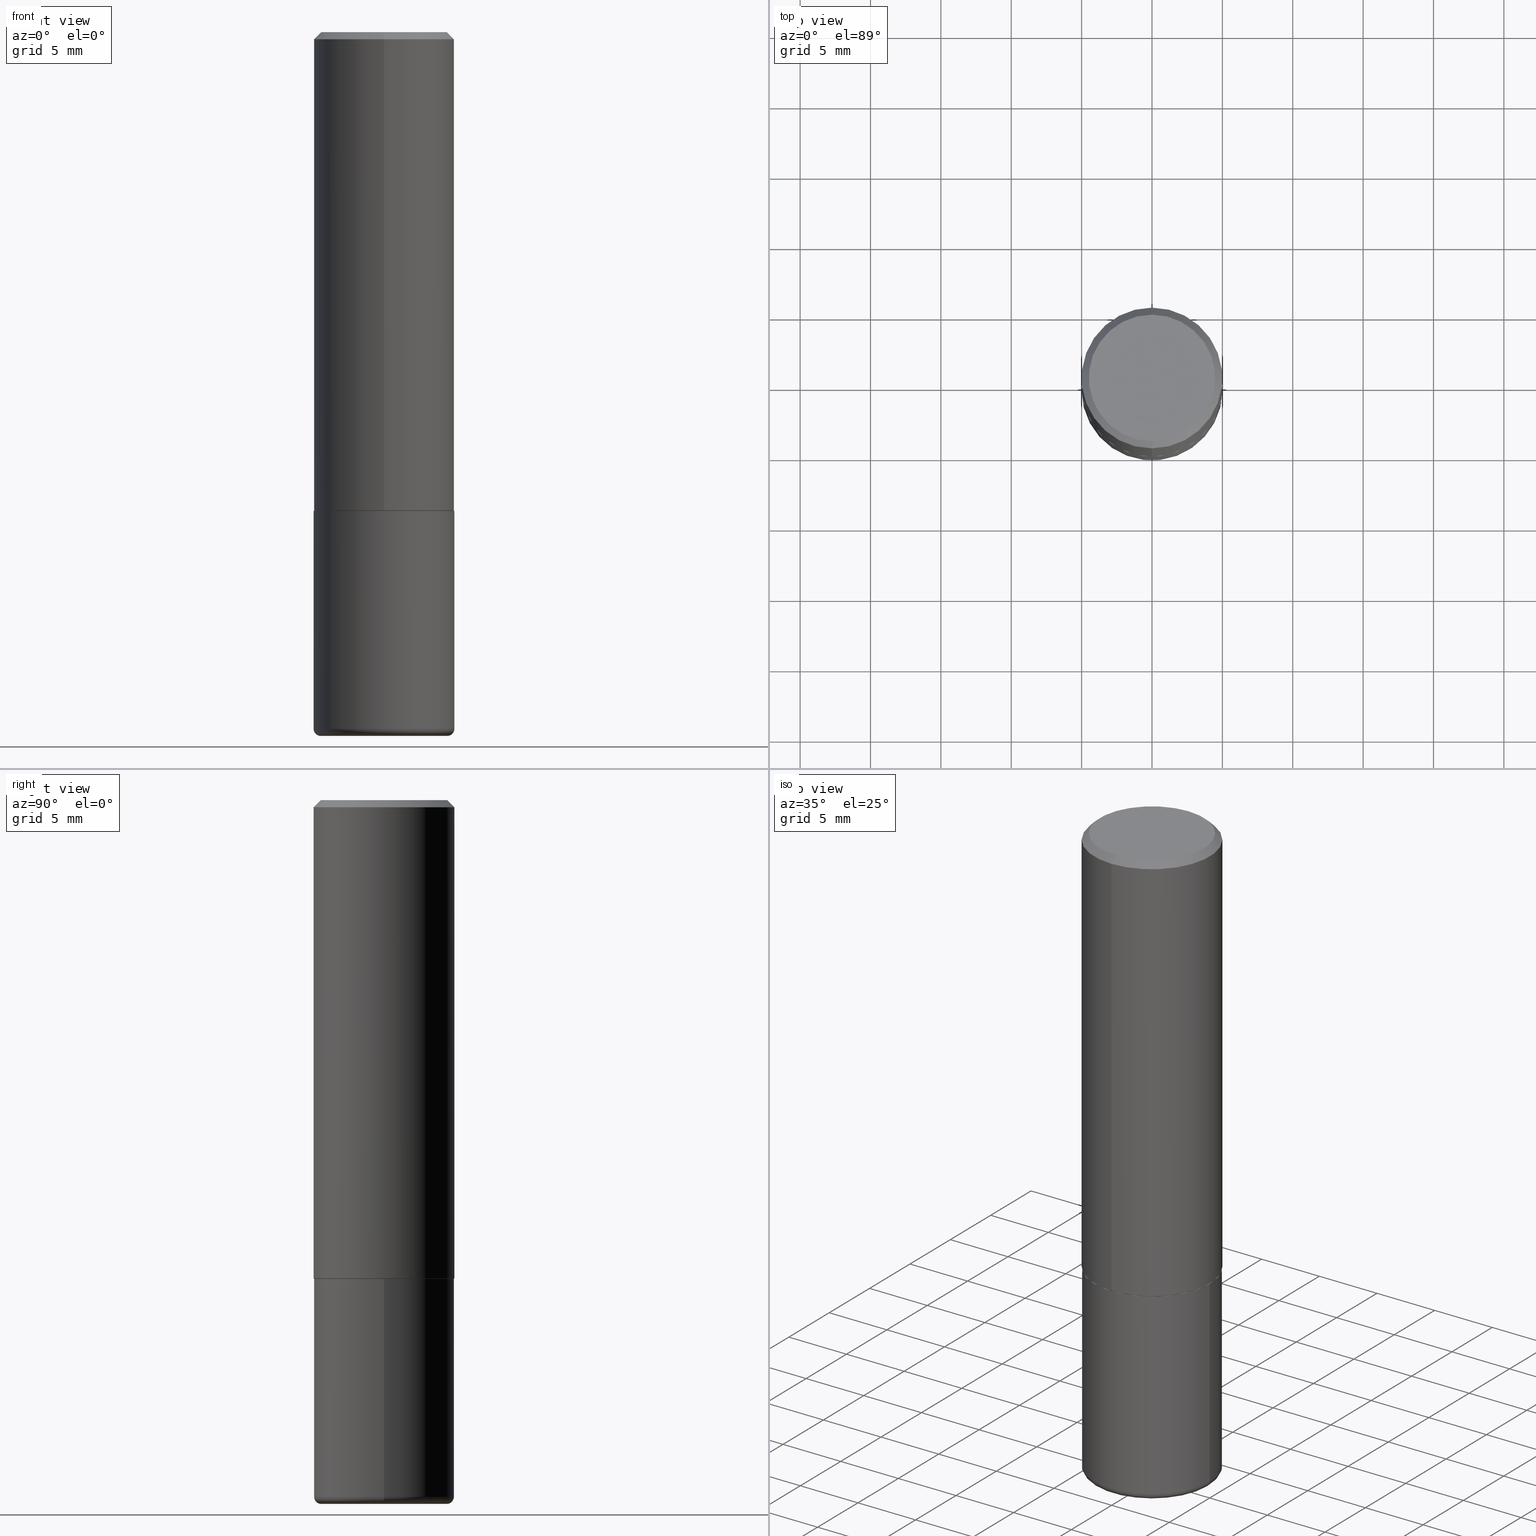
[diagram: canonical four-view strip — front | top / right | iso, engineering-drawing reading convention]
A machine part, canonical four-view strip (front | top / right | iso — engineering-drawing reading convention). The complete STEP part file that produces these views, byte-faithful:
ISO-10303-21;
HEADER;
FILE_DESCRIPTION (( 'STEP AP203' ),
    '1' );
FILE_NAME ('42672.STEP',
    '2024-03-04T00:34:59',
    ( '' ),
    ( '' ),
    'SwSTEP 2.0',
    'SolidWorks 2023',
    '' );
FILE_SCHEMA (( 'CONFIG_CONTROL_DESIGN' ));
ENDSEC;

DATA;
#1 = EDGE_LOOP ( 'NONE', ( #102, #203, #369, #12 ) ) ;
#2 = EDGE_CURVE ( 'NONE', #41, #218, #229, .T. ) ;
#3 = EDGE_CURVE ( 'NONE', #199, #367, #324, .T. ) ;
#4 = AXIS2_PLACEMENT_3D ( 'NONE', #159, #100, #301 ) ;
#5 = AXIS2_PLACEMENT_3D ( 'NONE', #157, #256, #262 ) ;
#6 = DIRECTION ( 'NONE',  ( -2.445468806185136597E-29, 3.491481338843145583E-15, 1.000000000000000000 ) ) ;
#7 = DATE_AND_TIME ( #64, #364 ) ;
#8 = FACE_OUTER_BOUND ( 'NONE', #80, .T. ) ;
#9 = AXIS2_PLACEMENT_3D ( 'NONE', #133, #365, #13 ) ;
#10 = CC_DESIGN_PERSON_AND_ORGANIZATION_ASSIGNMENT ( #179, #60, ( #182 ) ) ;
#11 = DIRECTION ( 'NONE',  ( 6.982962677686265133E-15, 1.000000000000000000, -3.491137977679279029E-15 ) ) ;
#12 = ORIENTED_EDGE ( 'NONE', *, *, #190, .F. ) ;
#13 = DIRECTION ( 'NONE',  ( -1.000000000000000000, 7.105427357601014480E-15, 0.000000000000000000 ) ) ;
#14 = DIRECTION ( 'NONE',  ( 1.000000000000000000, -6.982962677686266711E-15, 0.000000000000000000 ) ) ;
#15 = ORIENTED_EDGE ( 'NONE', *, *, #104, .F. ) ;
#16 = DIRECTION ( 'NONE',  ( 1.000000000000000000, -6.982962677686268288E-15, 0.000000000000000000 ) ) ;
#17 = CARTESIAN_POINT ( 'NONE',  ( -1.367613240424822659E-15, -0.1958500000000047148, -1.338599999999999568 ) ) ;
#18 = VERTEX_POINT ( 'NONE', #142 ) ;
#19 = VECTOR ( 'NONE', #331, 39.37007874015748143 ) ;
#20 = CARTESIAN_POINT ( 'NONE',  ( 4.765729609493594537E-29, -6.804198833137522100E-15, -1.948800000000000088 ) ) ;
#21 = CARTESIAN_POINT ( 'NONE',  ( 0.000000000000000000, 0.000000000000000000, 0.000000000000000000 ) ) ;
#22 = ORIENTED_EDGE ( 'NONE', *, *, #289, .F. ) ;
#23 = CIRCLE ( 'NONE', #241, 0.1768499999999998129 ) ;
#24 = LOCAL_TIME ( 19, 34, 59.00000000000000000, #318 ) ;
#25 = FACE_OUTER_BOUND ( 'NONE', #69, .T. ) ;
#26 = COORDINATED_UNIVERSAL_TIME_OFFSET ( 5, 0, .BEHIND. ) ;
#27 = PLANE ( 'NONE',  #418 ) ;
#28 = ORIENTED_EDGE ( 'NONE', *, *, #3, .T. ) ;
#29 = DATE_TIME_ROLE ( 'creation_date' ) ;
#30 = DIRECTION ( 'NONE',  ( -2.445468806185136597E-29, 3.491481338843145583E-15, 1.000000000000000000 ) ) ;
#31 = EDGE_CURVE ( 'NONE', #342, #98, #392, .T. ) ;
#32 = CIRCLE ( 'NONE', #81, 0.1771499999999999742 ) ;
#33 = ORGANIZATION ( 'UNSPECIFIED', 'UNSPECIFIED', '' ) ;
#34 = PERSON ( 'UNSPECIFIED', 'UNSPECIFIED', 'UNSPECIFIED', ('UNSPECIFIED'), ('UNSPECIFIED'), ('UNSPECIFIED') ) ;
#35 = EDGE_CURVE ( 'NONE', #218, #98, #285, .T. ) ;
#36 = CC_DESIGN_PERSON_AND_ORGANIZATION_ASSIGNMENT ( #85, #95, ( #182 ) ) ;
#37 = CIRCLE ( 'NONE', #384, 0.1968500000000000527 ) ;
#38 = CARTESIAN_POINT ( 'NONE',  ( 4.765729609493594537E-29, -6.804198833137522100E-15, -1.948800000000000088 ) ) ;
#39 = DIRECTION ( 'NONE',  ( -2.445468806185136597E-29, 3.491481338843145583E-15, 1.000000000000000000 ) ) ;
#40 = EDGE_CURVE ( 'NONE', #208, #401, #200, .T. ) ;
#41 = VERTEX_POINT ( 'NONE', #17 ) ;
#42 = FACE_OUTER_BOUND ( 'NONE', #325, .T. ) ;
#43 = VECTOR ( 'NONE', #209, 39.37007874015748143 ) ;
#44 = ORIENTED_EDGE ( 'NONE', *, *, #112, .F. ) ;
#45 = DIRECTION ( 'NONE',  ( 1.000000000000000000, -6.982962677686266711E-15, 4.876176775795935793E-29 ) ) ;
#46 = LINE ( 'NONE', #140, #153 ) ;
#47 = DIRECTION ( 'NONE',  ( -6.982962677686265922E-15, -1.000000000000000000, 3.489961076653892857E-15 ) ) ;
#48 = ORIENTED_EDGE ( 'NONE', *, *, #35, .T. ) ;
#49 = EDGE_CURVE ( 'NONE', #98, #218, #65, .T. ) ;
#50 = CLOSED_SHELL ( 'NONE', ( #148, #299, #169, #227, #265, #154, #379, #243 ) ) ;
#51 = AXIS2_PLACEMENT_3D ( 'NONE', #207, #162, #47 ) ;
#52 = CARTESIAN_POINT ( 'NONE',  ( 4.893060799195852986E-31, -6.979922153307800258E-17, -0.02000000000000004205 ) ) ;
#53 = EDGE_CURVE ( 'NONE', #156, #298, #73, .T. ) ;
#54 =( LENGTH_UNIT ( ) NAMED_UNIT ( * ) SI_UNIT ( $, .METRE. ) );
#55 = FACE_OUTER_BOUND ( 'NONE', #126, .T. ) ;
#56 = CONICAL_SURFACE ( 'NONE', #99, 0.1958500000000000518, 0.7853981633973288190 ) ;
#57 = AXIS2_PLACEMENT_3D ( 'NONE', #139, #291, #110 ) ;
#58 = DIRECTION ( 'NONE',  ( 2.446530399597921291E-29, -3.489961076653893251E-15, -1.000000000000000000 ) ) ;
#59 = ORIENTED_EDGE ( 'NONE', *, *, #62, .T. ) ;
#60 = PERSON_AND_ORGANIZATION_ROLE ( 'creator' ) ;
#61 = DIRECTION ( 'NONE',  ( 2.438088387897960049E-29, -3.491481338843145188E-15, -1.000000000000000000 ) ) ;
#62 = EDGE_CURVE ( 'NONE', #109, #164, #326, .T. ) ;
#63 = CALENDAR_DATE ( 2024, 3, 3 ) ;
#64 = CALENDAR_DATE ( 2024, 3, 3 ) ;
#65 = CIRCLE ( 'NONE', #193, 0.1968500000000001360 ) ;
#66 = CONICAL_SURFACE ( 'NONE', #382, 0.1958500000000000518, 0.7853981633973288190 ) ;
#67 = CARTESIAN_POINT ( 'NONE',  ( 1.391597947986189123E-15, 0.1958499999999953611, -1.338600000000001122 ) ) ;
#68 = CARTESIAN_POINT ( 'NONE',  ( 3.274925592901778340E-29, -4.671661897208901571E-15, -1.338600000000000234 ) ) ;
#69 = EDGE_LOOP ( 'NONE', ( #59, #114 ) ) ;
#70 = DIRECTION ( 'NONE',  ( -2.445468806185136597E-29, 3.491481338843145583E-15, 1.000000000000000000 ) ) ;
#71 = LINE ( 'NONE', #198, #19 ) ;
#72 = EDGE_CURVE ( 'NONE', #41, #342, #155, .T. ) ;
#73 = CIRCLE ( 'NONE', #269, 0.1771499999999999742 ) ;
#74 = EDGE_LOOP ( 'NONE', ( #141, #302, #398, #184 ) ) ;
#75 = AXIS2_PLACEMENT_3D ( 'NONE', #296, #70, #332 ) ;
#76 = FACE_OUTER_BOUND ( 'NONE', #237, .T. ) ;
#77 = DIRECTION ( 'NONE',  ( -6.982962677686265133E-15, -1.000000000000000000, 4.184602492209745870E-15 ) ) ;
#78 = CARTESIAN_POINT ( 'NONE',  ( 0.1968500000000000527, -1.374596203102542003E-15, 9.598753983154302260E-30 ) ) ;
#79 = DIRECTION ( 'NONE',  ( -2.445468806185136597E-29, 3.491481338843145583E-15, 1.000000000000000000 ) ) ;
#80 = EDGE_LOOP ( 'NONE', ( #210, #253, #271, #417 ) ) ;
#81 = AXIS2_PLACEMENT_3D ( 'NONE', #371, #79, #16 ) ;
#82 = CC_DESIGN_SECURITY_CLASSIFICATION ( #327, ( #182 ) ) ;
#83 = APPROVAL ( #323, 'UNSPECIFIED' ) ;
#84 = EDGE_LOOP ( 'NONE', ( #48, #267, #22, #362 ) ) ;
#85 = PERSON_AND_ORGANIZATION ( #34, #33 ) ;
#86 = DIRECTION ( 'NONE',  ( -6.982962677686265133E-15, -1.000000000000000000, 3.491137977679279029E-15 ) ) ;
#87 = CARTESIAN_POINT ( 'NONE',  ( 1.234936949548814815E-15, 0.1768499999999998129, -5.127554895828650430E-16 ) ) ;
#88 = ORIENTED_EDGE ( 'NONE', *, *, #181, .F. ) ;
#89 = CARTESIAN_POINT ( 'NONE',  ( 4.893060799195852986E-31, -6.979922153307800258E-17, -0.02000000000000004205 ) ) ;
#90 = CARTESIAN_POINT ( 'NONE',  ( -1.374596203102509659E-15, -0.1968500000000048267, -1.337599999999999234 ) ) ;
#91 = COORDINATED_UNIVERSAL_TIME_OFFSET ( 5, 0, .BEHIND. ) ;
#92 = AXIS2_PLACEMENT_3D ( 'NONE', #21, #187, #115 ) ;
#93 = VECTOR ( 'NONE', #377, 39.37007874015748143 ) ;
#94 = DIRECTION ( 'NONE',  ( -1.000000000000000000, 6.982962677686265922E-15, -4.876176775795935793E-29 ) ) ;
#95 = PERSON_AND_ORGANIZATION_ROLE ( 'design_supplier' ) ;
#96 = APPLICATION_PROTOCOL_DEFINITION ( 'international standard', 'config_control_design', 1994, #374 ) ;
#97 = APPROVAL_PERSON_ORGANIZATION ( #349, #135, #354 ) ;
#98 = VERTEX_POINT ( 'NONE', #196 ) ;
#99 = AXIS2_PLACEMENT_3D ( 'NONE', #107, #132, #111 ) ;
#100 = DIRECTION ( 'NONE',  ( -2.446530399597921291E-29, 3.489961076653893251E-15, 1.000000000000000000 ) ) ;
#101 = APPROVAL_PERSON_ORGANIZATION ( #284, #238, #348 ) ;
#102 = ORIENTED_EDGE ( 'NONE', *, *, #53, .T. ) ;
#103 = ORIENTED_EDGE ( 'NONE', *, *, #190, .T. ) ;
#104 = EDGE_CURVE ( 'NONE', #164, #109, #23, .T. ) ;
#105 = DIRECTION ( 'NONE',  ( -2.445468806185136597E-29, 3.491481338843145583E-15, 1.000000000000000000 ) ) ;
#106 = DIRECTION ( 'NONE',  ( 1.000000000000000000, -6.982962677686266711E-15, 0.000000000000000000 ) ) ;
#107 = CARTESIAN_POINT ( 'NONE',  ( 3.274925592901778340E-29, -4.671661897208901571E-15, -1.338600000000000234 ) ) ;
#108 = CC_DESIGN_PERSON_AND_ORGANIZATION_ASSIGNMENT ( #257, #395, ( #319 ) ) ;
#109 = VERTEX_POINT ( 'NONE', #329 ) ;
#110 = DIRECTION ( 'NONE',  ( -6.982962677686265922E-15, -1.000000000000000000, 3.489961076653892857E-15 ) ) ;
#111 = DIRECTION ( 'NONE',  ( -6.982962677686265133E-15, -1.000000000000000000, 4.184602492209745870E-15 ) ) ;
#112 = EDGE_CURVE ( 'NONE', #208, #199, #71, .T. ) ;
#113 = CARTESIAN_POINT ( 'NONE',  ( 0.000000000000000000, 0.000000000000000000, 0.000000000000000000 ) ) ;
#114 = ORIENTED_EDGE ( 'NONE', *, *, #104, .T. ) ;
#115 = DIRECTION ( 'NONE',  ( -6.982962677686265922E-15, -1.000000000000000000, 3.489961076653893646E-15 ) ) ;
#116 = COORDINATED_UNIVERSAL_TIME_OFFSET ( 5, 0, .BEHIND. ) ;
#117 = VECTOR ( 'NONE', #270, 39.37007874015748854 ) ;
#118 = APPROVAL_PERSON_ORGANIZATION ( #281, #83, #248 ) ;
#119 = CARTESIAN_POINT ( 'NONE',  ( -1.350489030861325626E-15, -0.1968500000000001082, -0.01999999999999935510 ) ) ;
#120 = LINE ( 'NONE', #412, #294 ) ;
#121 = CARTESIAN_POINT ( 'NONE',  ( 1.398703375343757788E-15, 0.1968500000000001082, -6.869988379393193333E-16 ) ) ;
#122 = DIRECTION ( 'NONE',  ( -2.446530399597921291E-29, 3.489961076653893251E-15, 1.000000000000000000 ) ) ;
#123 = AXIS2_PLACEMENT_3D ( 'NONE', #68, #303, #226 ) ;
#124 =( GEOMETRIC_REPRESENTATION_CONTEXT ( 3 ) GLOBAL_UNCERTAINTY_ASSIGNED_CONTEXT ( ( #313 ) ) GLOBAL_UNIT_ASSIGNED_CONTEXT ( ( #415, #245, #338 ) ) REPRESENTATION_CONTEXT ( 'NONE', 'WORKASPACE' ) );
#125 = ORIENTED_EDGE ( 'NONE', *, *, #188, .T. ) ;
#126 = EDGE_LOOP ( 'NONE', ( #138, #372, #125, #160 ) ) ;
#127 = CONICAL_SURFACE ( 'NONE', #249, 0.1968500000000000527, 0.7853981633974477239 ) ;
#128 = CIRCLE ( 'NONE', #221, 0.1968500000000000527 ) ;
#129 = FACE_OUTER_BOUND ( 'NONE', #352, .T. ) ;
#130 = APPROVAL_DATE_TIME ( #7, #135 ) ;
#131 = CIRCLE ( 'NONE', #9, 0.01970000000000002999 ) ;
#132 = DIRECTION ( 'NONE',  ( -2.446530399597921291E-29, 3.489961076653893251E-15, 1.000000000000000000 ) ) ;
#133 = CARTESIAN_POINT ( 'NONE',  ( -0.1771500000000000019, -5.545472376738503621E-15, -1.948800000000000088 ) ) ;
#134 = DIRECTION ( 'NONE',  ( -2.446530399597921291E-29, 3.489961076653893251E-15, 1.000000000000000000 ) ) ;
#135 = APPROVAL ( #224, 'UNSPECIFIED' ) ;
#136 = CARTESIAN_POINT ( 'NONE',  ( 1.395150661664990219E-15, 0.1958499999999953611, -1.338600000000001122 ) ) ;
#137 = DIRECTION ( 'NONE',  ( 5.024295867787461278E-15, 0.7071067811864654162, 0.7071067811866295072 ) ) ;
#138 = ORIENTED_EDGE ( 'NONE', *, *, #407, .F. ) ;
#139 = CARTESIAN_POINT ( 'NONE',  ( 3.274925592901778340E-29, -4.671661897208901571E-15, -1.338600000000000234 ) ) ;
#140 = CARTESIAN_POINT ( 'NONE',  ( -1.350489030861325626E-15, -0.1968500000000001082, -0.01999999999999935510 ) ) ;
#141 = ORIENTED_EDGE ( 'NONE', *, *, #177, .F. ) ;
#142 = CARTESIAN_POINT ( 'NONE',  ( 1.374596203102542200E-15, 0.1968499999999999694, -0.02000000000000072900 ) ) ;
#143 = ORIENTED_EDGE ( 'NONE', *, *, #306, .F. ) ;
#144 = CARTESIAN_POINT ( 'NONE',  ( 0.1771500000000000019, -8.041230671489644494E-15, -1.948800000000000088 ) ) ;
#145 = DIRECTION ( 'NONE',  ( 6.982962677686265133E-15, 1.000000000000000000, -3.491137977679279029E-15 ) ) ;
#146 = SECURITY_CLASSIFICATION_LEVEL ( 'unclassified' ) ;
#147 = AXIS2_PLACEMENT_3D ( 'NONE', #38, #391, #242 ) ;
#148 = ADVANCED_FACE ( 'NONE', ( #8 ), #66, .T. ) ;
#149 = LENGTH_MEASURE_WITH_UNIT ( LENGTH_MEASURE( 0.02539999999999999897 ), #54 );
#150 = CARTESIAN_POINT ( 'NONE',  ( 3.273504543959423913E-29, -4.673696920175434737E-15, -1.338600000000000012 ) ) ;
#151 = APPROVAL_DATE_TIME ( #189, #238 ) ;
#152 = ORIENTED_EDGE ( 'NONE', *, *, #40, .T. ) ;
#153 = VECTOR ( 'NONE', #336, 39.37007874015748143 ) ;
#154 = ADVANCED_FACE ( 'NONE', ( #204 ), #56, .T. ) ;
#155 = CIRCLE ( 'NONE', #123, 0.1958500000000000518 ) ;
#156 = VERTEX_POINT ( 'NONE', #261 ) ;
#157 = CARTESIAN_POINT ( 'NONE',  ( 0.000000000000000000, 0.000000000000000000, 0.000000000000000000 ) ) ;
#158 = CYLINDRICAL_SURFACE ( 'NONE', #163, 0.1968500000000000527 ) ;
#159 = CARTESIAN_POINT ( 'NONE',  ( 3.272479062502179524E-29, -4.668171936132247256E-15, -1.337599999999999900 ) ) ;
#160 = ORIENTED_EDGE ( 'NONE', *, *, #409, .F. ) ;
#161 = AXIS2_PLACEMENT_3D ( 'NONE', #276, #122, #244 ) ;
#162 = DIRECTION ( 'NONE',  ( -2.446530399597921291E-29, 3.489961076653893251E-15, 1.000000000000000000 ) ) ;
#163 = AXIS2_PLACEMENT_3D ( 'NONE', #356, #6, #45 ) ;
#164 = VERTEX_POINT ( 'NONE', #263 ) ;
#165 = PRODUCT_RELATED_PRODUCT_CATEGORY ( 'detail', '', ( #170 ) ) ;
#166 = DIRECTION ( 'NONE',  ( -2.445468806185136877E-29, 3.491481338843145188E-15, 1.000000000000000000 ) ) ;
#167 = FACE_OUTER_BOUND ( 'NONE', #1, .T. ) ;
#168 = APPLICATION_PROTOCOL_DEFINITION ( 'international standard', 'config_control_design', 1994, #191 ) ;
#169 = ADVANCED_FACE ( 'NONE', ( #42 ), #127, .T. ) ;
#170 = PRODUCT ( '42672', '42672', '', ( #390 ) ) ;
#171 = LINE ( 'NONE', #217, #43 ) ;
#172 = AXIS2_PLACEMENT_3D ( 'NONE', #144, #378, #174 ) ;
#173 = CC_DESIGN_APPROVAL ( #238, ( #327 ) ) ;
#174 = DIRECTION ( 'NONE',  ( 1.000000000000000000, -6.982962677686267499E-15, 0.000000000000000000 ) ) ;
#175 = ORIENTED_EDGE ( 'NONE', *, *, #292, .T. ) ;
#176 = CARTESIAN_POINT ( 'NONE',  ( -0.1968500000000000527, -5.405495457793762735E-15, -1.948799999999999644 ) ) ;
#177 = EDGE_CURVE ( 'NONE', #164, #214, #46, .T. ) ;
#178 = FACE_OUTER_BOUND ( 'NONE', #360, .T. ) ;
#179 = PERSON_AND_ORGANIZATION ( #34, #33 ) ;
#180 = AXIS2_PLACEMENT_3D ( 'NONE', #341, #61, #94 ) ;
#181 = EDGE_CURVE ( 'NONE', #401, #367, #406, .T. ) ;
#182 = PRODUCT_DEFINITION_FORMATION_WITH_SPECIFIED_SOURCE ( 'ANY', '', #170, .NOT_KNOWN. ) ;
#183 = DIRECTION ( 'NONE',  ( 2.446530399597921291E-29, -3.489961076653892857E-15, -1.000000000000000000 ) ) ;
#184 = ORIENTED_EDGE ( 'NONE', *, *, #409, .T. ) ;
#185 = PERSON_AND_ORGANIZATION ( #34, #33 ) ;
#186 = ADVANCED_FACE ( 'NONE', ( #167 ), #388, .T. ) ;
#187 = DIRECTION ( 'NONE',  ( -2.446530399597921291E-29, 3.489961076653893251E-15, 1.000000000000000000 ) ) ;
#188 = EDGE_CURVE ( 'NONE', #218, #214, #171, .T. ) ;
#189 = DATE_AND_TIME ( #63, #286 ) ;
#190 = EDGE_CURVE ( 'NONE', #156, #401, #363, .T. ) ;
#191 = APPLICATION_CONTEXT ( 'configuration controlled 3d designs of mechanical parts and assemblies' ) ;
#192 = ADVANCED_FACE ( 'NONE', ( #305 ), #383, .T. ) ;
#193 = AXIS2_PLACEMENT_3D ( 'NONE', #400, #231, #358 ) ;
#194 = CIRCLE ( 'NONE', #394, 0.1968500000000000527 ) ;
#195 = CIRCLE ( 'NONE', #251, 0.1968500000000000527 ) ;
#196 = CARTESIAN_POINT ( 'NONE',  ( 1.398703375343774551E-15, 0.1968499999999954730, -1.337600000000000788 ) ) ;
#197 = ADVANCED_BREP_SHAPE_REPRESENTATION ( '42672', ( #314, #312, #5 ), #124 ) ;
#198 = CARTESIAN_POINT ( 'NONE',  ( -0.1968500000000000527, 1.398703375343757590E-15, -9.682923725166785079E-30 ) ) ;
#199 = VERTEX_POINT ( 'NONE', #308 ) ;
#200 = CIRCLE ( 'NONE', #288, 0.1968500000000000527 ) ;
#201 = DIRECTION ( 'NONE',  ( 2.446530399597921291E-29, -3.489961076653893251E-15, -1.000000000000000000 ) ) ;
#202 = CC_DESIGN_APPROVAL ( #135, ( #319 ) ) ;
#203 = ORIENTED_EDGE ( 'NONE', *, *, #322, .T. ) ;
#204 = FACE_OUTER_BOUND ( 'NONE', #239, .T. ) ;
#205 = ORIENTED_EDGE ( 'NONE', *, *, #112, .T. ) ;
#206 = CARTESIAN_POINT ( 'NONE',  ( 0.1968500000000000527, -8.178795036240062131E-15, -1.948799999999999644 ) ) ;
#207 = CARTESIAN_POINT ( 'NONE',  ( -5.110514626656973596E-45, 7.290118745973661303E-31, 2.088882536467508497E-16 ) ) ;
#208 = VERTEX_POINT ( 'NONE', #176 ) ;
#209 = DIRECTION ( 'NONE',  ( -2.446530399597921291E-29, 3.489961076653892857E-15, 1.000000000000000000 ) ) ;
#210 = ORIENTED_EDGE ( 'NONE', *, *, #72, .T. ) ;
#211 = PRODUCT_DEFINITION_SHAPE ( 'NONE', 'NONE',  #319 ) ;
#212 = DIRECTION ( 'NONE',  ( -2.446530399597921291E-29, 3.489961076653893251E-15, 1.000000000000000000 ) ) ;
#213 = DIRECTION ( 'NONE',  ( -1.000000000000000000, 6.982962677686265922E-15, -4.876176775795935793E-29 ) ) ;
#214 = VERTEX_POINT ( 'NONE', #119 ) ;
#215 = CALENDAR_DATE ( 2024, 3, 3 ) ;
#216 = CALENDAR_DATE ( 2024, 3, 3 ) ;
#217 = CARTESIAN_POINT ( 'NONE',  ( -1.374596203102542200E-15, -0.1968500000000001082, 6.869988379393193333E-16 ) ) ;
#218 = VERTEX_POINT ( 'NONE', #90 ) ;
#219 = APPROVAL_STATUS ( 'not_yet_approved' ) ;
#220 = AXIS2_PLACEMENT_3D ( 'NONE', #397, #39, #357 ) ;
#221 = AXIS2_PLACEMENT_3D ( 'NONE', #89, #212, #86 ) ;
#222 = ORIENTED_EDGE ( 'NONE', *, *, #258, .T. ) ;
#223 = EDGE_CURVE ( 'NONE', #109, #18, #120, .T. ) ;
#224 = APPROVAL_STATUS ( 'not_yet_approved' ) ;
#225 = AXIS2_PLACEMENT_3D ( 'NONE', #87, #183, #381 ) ;
#226 = DIRECTION ( 'NONE',  ( -6.982962677686265133E-15, -1.000000000000000000, 4.184602492209745870E-15 ) ) ;
#227 = ADVANCED_FACE ( 'NONE', ( #347 ), #277, .T. ) ;
#228 = CARTESIAN_POINT ( 'NONE',  ( 3.273504543959423913E-29, -4.673696920175434737E-15, -1.338600000000000012 ) ) ;
#229 = LINE ( 'NONE', #333, #117 ) ;
#230 = EDGE_LOOP ( 'NONE', ( #175, #205, #264, #88 ) ) ;
#231 = DIRECTION ( 'NONE',  ( -2.446530399597921291E-29, 3.489961076653893251E-15, 1.000000000000000000 ) ) ;
#232 = DIMENSIONAL_EXPONENTS ( 1.000000000000000000, 0.000000000000000000, 0.000000000000000000, 0.000000000000000000, 0.000000000000000000, 0.000000000000000000, 0.000000000000000000 ) ;
#233 = PLANE ( 'NONE',  #57 ) ;
#234 = ORIENTED_EDGE ( 'NONE', *, *, #289, .T. ) ;
#235 = ORIENTED_EDGE ( 'NONE', *, *, #72, .F. ) ;
#236 = FACE_OUTER_BOUND ( 'NONE', #280, .T. ) ;
#237 = EDGE_LOOP ( 'NONE', ( #44, #152, #254, #273 ) ) ;
#238 = APPROVAL ( #219, 'UNSPECIFIED' ) ;
#239 = EDGE_LOOP ( 'NONE', ( #287, #222, #283, #290 ) ) ;
#240 = DIRECTION ( 'NONE',  ( -6.982962677686265133E-15, -1.000000000000000000, 3.491137977679279029E-15 ) ) ;
#241 = AXIS2_PLACEMENT_3D ( 'NONE', #368, #134, #300 ) ;
#242 = DIRECTION ( 'NONE',  ( 1.000000000000000000, -6.982962677686266711E-15, 4.883557194083112340E-29 ) ) ;
#243 = ADVANCED_FACE ( 'NONE', ( #25 ), #279, .F. ) ;
#244 = DIRECTION ( 'NONE',  ( -6.982962677686265133E-15, -1.000000000000000000, 4.184602492209745870E-15 ) ) ;
#245 =( NAMED_UNIT ( * ) PLANE_ANGLE_UNIT ( ) SI_UNIT ( $, .RADIAN. ) );
#246 = DIRECTION ( 'NONE',  ( -2.445468806185136597E-29, 3.491481338843145583E-15, 1.000000000000000000 ) ) ;
#247 = DIRECTION ( 'NONE',  ( -2.446530399597921291E-29, 3.489961076653893251E-15, 1.000000000000000000 ) ) ;
#248 = APPROVAL_ROLE ( '' ) ;
#249 = AXIS2_PLACEMENT_3D ( 'NONE', #297, #201, #11 ) ;
#250 = ADVANCED_FACE ( 'NONE', ( #178 ), #27, .F. ) ;
#251 = AXIS2_PLACEMENT_3D ( 'NONE', #228, #402, #106 ) ;
#252 = PERSON_AND_ORGANIZATION_ROLE ( 'design_owner' ) ;
#253 = ORIENTED_EDGE ( 'NONE', *, *, #31, .T. ) ;
#254 = ORIENTED_EDGE ( 'NONE', *, *, #181, .T. ) ;
#255 = VECTOR ( 'NONE', #137, 39.37007874015748854 ) ;
#256 = DIRECTION ( 'NONE',  ( 0.000000000000000000, 0.000000000000000000, 1.000000000000000000 ) ) ;
#257 = PERSON_AND_ORGANIZATION ( #34, #33 ) ;
#258 = EDGE_CURVE ( 'NONE', #342, #41, #351, .T. ) ;
#259 = AXIS2_PLACEMENT_3D ( 'NONE', #113, #247, #272 ) ;
#260 = CC_DESIGN_APPROVAL ( #83, ( #182 ) ) ;
#261 = CARTESIAN_POINT ( 'NONE',  ( 0.1771499999999999742, -8.110012853864854101E-15, -1.968500000000000139 ) ) ;
#262 = DIRECTION ( 'NONE',  ( 1.000000000000000000, 0.000000000000000000, 0.000000000000000000 ) ) ;
#263 = CARTESIAN_POINT ( 'NONE',  ( -1.281884050883609900E-15, -0.1768499999999998129, 8.260878700529913052E-16 ) ) ;
#264 = ORIENTED_EDGE ( 'NONE', *, *, #355, .F. ) ;
#265 = ADVANCED_FACE ( 'NONE', ( #55 ), #343, .T. ) ;
#266 = DIRECTION ( 'NONE',  ( -2.445468806185136597E-29, 3.491481338843145583E-15, 1.000000000000000000 ) ) ;
#267 = ORIENTED_EDGE ( 'NONE', *, *, #407, .T. ) ;
#268 = FACE_OUTER_BOUND ( 'NONE', #230, .T. ) ;
#269 = AXIS2_PLACEMENT_3D ( 'NONE', #361, #266, #366 ) ;
#270 = DIRECTION ( 'NONE',  ( -4.937700262163957185E-15, -0.7071067811864604202, 0.7071067811866343922 ) ) ;
#271 = ORIENTED_EDGE ( 'NONE', *, *, #35, .F. ) ;
#272 = DIRECTION ( 'NONE',  ( -6.982962677686265922E-15, -1.000000000000000000, 3.489961076653893646E-15 ) ) ;
#273 = ORIENTED_EDGE ( 'NONE', *, *, #3, .F. ) ;
#274 = DIRECTION ( 'NONE',  ( 2.438088387897960049E-29, -3.491481338843145188E-15, -1.000000000000000000 ) ) ;
#275 = CC_DESIGN_DATE_AND_TIME_ASSIGNMENT ( #317, #411, ( #327 ) ) ;
#276 = CARTESIAN_POINT ( 'NONE',  ( 3.274925592901778340E-29, -4.671661897208901571E-15, -1.338600000000000234 ) ) ;
#277 = CONICAL_SURFACE ( 'NONE', #404, 0.1968500000000000527, 0.7853981633974477239 ) ;
#278 = LOCAL_TIME ( 19, 34, 59.00000000000000000, #91 ) ;
#279 = PLANE ( 'NONE',  #225 ) ;
#280 = EDGE_LOOP ( 'NONE', ( #321, #316, #103, #344 ) ) ;
#281 = PERSON_AND_ORGANIZATION ( #34, #33 ) ;
#282 = DIRECTION ( 'NONE',  ( 1.000000000000000000, -6.982962677686266711E-15, 0.000000000000000000 ) ) ;
#283 = ORIENTED_EDGE ( 'NONE', *, *, #2, .T. ) ;
#284 = PERSON_AND_ORGANIZATION ( #34, #33 ) ;
#285 = CIRCLE ( 'NONE', #4, 0.1968500000000001360 ) ;
#286 = LOCAL_TIME ( 19, 34, 59.00000000000000000, #26 ) ;
#287 = ORIENTED_EDGE ( 'NONE', *, *, #31, .F. ) ;
#288 = AXIS2_PLACEMENT_3D ( 'NONE', #293, #105, #14 ) ;
#289 = EDGE_CURVE ( 'NONE', #214, #18, #37, .T. ) ;
#290 = ORIENTED_EDGE ( 'NONE', *, *, #49, .F. ) ;
#291 = DIRECTION ( 'NONE',  ( -2.446530399597921291E-29, 3.489961076653892857E-15, 1.000000000000000000 ) ) ;
#292 = EDGE_CURVE ( 'NONE', #401, #208, #194, .T. ) ;
#293 = CARTESIAN_POINT ( 'NONE',  ( 4.765729609493593976E-29, -6.804198833137520522E-15, -1.948799999999999644 ) ) ;
#294 = VECTOR ( 'NONE', #410, 39.37007874015748143 ) ;
#295 = LOCAL_TIME ( 19, 34, 59.00000000000000000, #116 ) ;
#296 = CARTESIAN_POINT ( 'NONE',  ( 0.000000000000000000, 0.000000000000000000, 0.000000000000000000 ) ) ;
#297 = CARTESIAN_POINT ( 'NONE',  ( 4.893060799195852986E-31, -6.979922153307800258E-17, -0.02000000000000004205 ) ) ;
#298 = VERTEX_POINT ( 'NONE', #408 ) ;
#299 = ADVANCED_FACE ( 'NONE', ( #416 ), #375, .T. ) ;
#300 = DIRECTION ( 'NONE',  ( -6.982962677686265922E-15, -1.000000000000000000, 3.489961076653892857E-15 ) ) ;
#301 = DIRECTION ( 'NONE',  ( -6.982962677686265922E-15, -1.000000000000000000, 4.163344669033672479E-15 ) ) ;
#302 = ORIENTED_EDGE ( 'NONE', *, *, #62, .F. ) ;
#303 = DIRECTION ( 'NONE',  ( -2.446530399597921291E-29, 3.489961076653893251E-15, 1.000000000000000000 ) ) ;
#304 = ORIENTED_EDGE ( 'NONE', *, *, #223, .F. ) ;
#305 = FACE_OUTER_BOUND ( 'NONE', #334, .T. ) ;
#306 = EDGE_CURVE ( 'NONE', #298, #156, #32, .T. ) ;
#307 = ORIENTED_EDGE ( 'NONE', *, *, #53, .F. ) ;
#308 = CARTESIAN_POINT ( 'NONE',  ( -0.1968500000000000527, -4.340244501312719447E-15, -1.338600000000000012 ) ) ;
#309 = LINE ( 'NONE', #121, #93 ) ;
#310 = CARTESIAN_POINT ( 'NONE',  ( 4.893060799195852986E-31, -6.979922153307800258E-17, -0.02000000000000004205 ) ) ;
#311 = PERSON_AND_ORGANIZATION_ROLE ( 'classification_officer' ) ;
#312 = MANIFOLD_SOLID_BREP ( 'Body-Move/Copy2[2]', #50 ) ;
#313 = UNCERTAINTY_MEASURE_WITH_UNIT (LENGTH_MEASURE( 1.000000000000000082E-05 ), #415, 'distance_accuracy_value', 'NONE');
#314 = MANIFOLD_SOLID_BREP ( 'Body-Move/Copy2[1]', #393 ) ;
#315 = DIRECTION ( 'NONE',  ( 1.000000000000000000, -6.982962677686266711E-15, 4.883557194083112340E-29 ) ) ;
#316 = ORIENTED_EDGE ( 'NONE', *, *, #306, .T. ) ;
#317 = DATE_AND_TIME ( #215, #278 ) ;
#318 = COORDINATED_UNIVERSAL_TIME_OFFSET ( 5, 0, .BEHIND. ) ;
#319 = PRODUCT_DEFINITION ( 'UNKNOWN', '', #182, #359 ) ;
#320 = DIRECTION ( 'NONE',  ( -2.446530399597921291E-29, 3.489961076653893251E-15, 1.000000000000000000 ) ) ;
#321 = ORIENTED_EDGE ( 'NONE', *, *, #322, .F. ) ;
#322 = EDGE_CURVE ( 'NONE', #298, #208, #131, .T. ) ;
#323 = APPROVAL_STATUS ( 'not_yet_approved' ) ;
#324 = CIRCLE ( 'NONE', #220, 0.1968500000000000527 ) ;
#325 = EDGE_LOOP ( 'NONE', ( #15, #387, #234, #304 ) ) ;
#326 = CIRCLE ( 'NONE', #51, 0.1768499999999998129 ) ;
#327 = SECURITY_CLASSIFICATION ( '', '', #146 ) ;
#328 = ADVANCED_FACE ( 'NONE', ( #76 ), #158, .T. ) ;
#329 = CARTESIAN_POINT ( 'NONE',  ( 1.304766576325678705E-15, 0.1768499999999998129, -4.083113627594895072E-16 ) ) ;
#330 = ORIENTED_EDGE ( 'NONE', *, *, #258, .F. ) ;
#331 = DIRECTION ( 'NONE',  ( -2.445468806185136877E-29, 3.491481338843145188E-15, 1.000000000000000000 ) ) ;
#332 = DIRECTION ( 'NONE',  ( 1.000000000000000000, -6.982962677686266711E-15, 4.876176775795935793E-29 ) ) ;
#333 = CARTESIAN_POINT ( 'NONE',  ( -1.367613240424822659E-15, -0.1958500000000047148, -1.338599999999999568 ) ) ;
#334 = EDGE_LOOP ( 'NONE', ( #307, #143 ) ) ;
#335 = ADVANCED_FACE ( 'NONE', ( #268 ), #396, .T. ) ;
#336 = DIRECTION ( 'NONE',  ( -4.851104656540961119E-15, -0.7071067811865495711, -0.7071067811865454633 ) ) ;
#337 = ORIENTED_EDGE ( 'NONE', *, *, #355, .T. ) ;
#338 =( NAMED_UNIT ( * ) SI_UNIT ( $, .STERADIAN. ) SOLID_ANGLE_UNIT ( ) );
#339 = DIRECTION ( 'NONE',  ( -2.446530399597921291E-29, 3.489961076653893251E-15, 1.000000000000000000 ) ) ;
#340 = TOROIDAL_SURFACE ( 'NONE', #147, 0.1771500000000000019, 0.01970000000000004733 ) ;
#341 = CARTESIAN_POINT ( 'NONE',  ( 4.813905344975441835E-29, -6.872981015512731707E-15, -1.968500000000000139 ) ) ;
#342 = VERTEX_POINT ( 'NONE', #136 ) ;
#343 = CYLINDRICAL_SURFACE ( 'NONE', #92, 0.1968500000000001082 ) ;
#344 = ORIENTED_EDGE ( 'NONE', *, *, #40, .F. ) ;
#345 = SHAPE_DEFINITION_REPRESENTATION ( #211, #197 ) ;
#346 = DATE_AND_TIME ( #216, #24 ) ;
#347 = FACE_OUTER_BOUND ( 'NONE', #74, .T. ) ;
#348 = APPROVAL_ROLE ( '' ) ;
#349 = PERSON_AND_ORGANIZATION ( #34, #33 ) ;
#350 = CC_DESIGN_PERSON_AND_ORGANIZATION_ASSIGNMENT ( #185, #311, ( #327 ) ) ;
#351 = CIRCLE ( 'NONE', #161, 0.1958500000000000518 ) ;
#352 = EDGE_LOOP ( 'NONE', ( #235, #330 ) ) ;
#353 = AXIS2_PLACEMENT_3D ( 'NONE', #20, #246, #315 ) ;
#354 = APPROVAL_ROLE ( '' ) ;
#355 = EDGE_CURVE ( 'NONE', #367, #199, #195, .T. ) ;
#356 = CARTESIAN_POINT ( 'NONE',  ( 0.000000000000000000, 0.000000000000000000, 0.000000000000000000 ) ) ;
#357 = DIRECTION ( 'NONE',  ( 1.000000000000000000, -6.982962677686266711E-15, 0.000000000000000000 ) ) ;
#358 = DIRECTION ( 'NONE',  ( -6.982962677686265922E-15, -1.000000000000000000, 4.163344669033672479E-15 ) ) ;
#359 = DESIGN_CONTEXT ( 'detailed design', #374, 'design' ) ;
#360 = EDGE_LOOP ( 'NONE', ( #337, #28 ) ) ;
#361 = CARTESIAN_POINT ( 'NONE',  ( 4.813905344975441835E-29, -6.872981015512731707E-15, -1.968500000000000139 ) ) ;
#362 = ORIENTED_EDGE ( 'NONE', *, *, #188, .F. ) ;
#363 = CIRCLE ( 'NONE', #172, 0.01970000000000002999 ) ;
#364 = LOCAL_TIME ( 19, 34, 59.00000000000000000, #385 ) ;
#365 = DIRECTION ( 'NONE',  ( 7.105427357601001859E-15, 1.000000000000000000, -3.491481338843145583E-15 ) ) ;
#366 = DIRECTION ( 'NONE',  ( 1.000000000000000000, -6.982962677686268288E-15, 0.000000000000000000 ) ) ;
#367 = VERTEX_POINT ( 'NONE', #405 ) ;
#368 = CARTESIAN_POINT ( 'NONE',  ( -5.110514626656973596E-45, 7.290118745973661303E-31, 2.088882536467508497E-16 ) ) ;
#369 = ORIENTED_EDGE ( 'NONE', *, *, #292, .F. ) ;
#370 = CC_DESIGN_DATE_AND_TIME_ASSIGNMENT ( #346, #29, ( #319 ) ) ;
#371 = CARTESIAN_POINT ( 'NONE',  ( 4.813905344975441835E-29, -6.872981015512731707E-15, -1.968500000000000139 ) ) ;
#372 = ORIENTED_EDGE ( 'NONE', *, *, #49, .T. ) ;
#373 = VECTOR ( 'NONE', #166, 39.37007874015748143 ) ;
#374 = APPLICATION_CONTEXT ( 'configuration controlled 3d designs of mechanical parts and assemblies' ) ;
#375 = CYLINDRICAL_SURFACE ( 'NONE', #259, 0.1968500000000001082 ) ;
#376 = APPROVAL_DATE_TIME ( #414, #83 ) ;
#377 = DIRECTION ( 'NONE',  ( -2.446530399597921291E-29, 3.489961076653892857E-15, 1.000000000000000000 ) ) ;
#378 = DIRECTION ( 'NONE',  ( -6.982962677686266711E-15, -1.000000000000000000, 3.491481338843145583E-15 ) ) ;
#379 = ADVANCED_FACE ( 'NONE', ( #129 ), #233, .F. ) ;
#380 = CALENDAR_DATE ( 2024, 3, 3 ) ;
#381 = DIRECTION ( 'NONE',  ( 6.982962677686265922E-15, 1.000000000000000000, -3.489961076653892857E-15 ) ) ;
#382 = AXIS2_PLACEMENT_3D ( 'NONE', #403, #339, #77 ) ;
#383 = PLANE ( 'NONE',  #180 ) ;
#384 = AXIS2_PLACEMENT_3D ( 'NONE', #310, #320, #240 ) ;
#385 = COORDINATED_UNIVERSAL_TIME_OFFSET ( 5, 0, .BEHIND. ) ;
#386 = ADVANCED_FACE ( 'NONE', ( #236 ), #340, .T. ) ;
#387 = ORIENTED_EDGE ( 'NONE', *, *, #177, .T. ) ;
#388 = TOROIDAL_SURFACE ( 'NONE', #353, 0.1771500000000000019, 0.01970000000000004733 ) ;
#389 = CC_DESIGN_PERSON_AND_ORGANIZATION_ASSIGNMENT ( #399, #252, ( #170 ) ) ;
#390 = MECHANICAL_CONTEXT ( 'NONE', #191, 'mechanical' ) ;
#391 = DIRECTION ( 'NONE',  ( -2.445468806185136597E-29, 3.491481338843145583E-15, 1.000000000000000000 ) ) ;
#392 = LINE ( 'NONE', #67, #255 ) ;
#393 = CLOSED_SHELL ( 'NONE', ( #335, #186, #250, #328, #386, #192 ) ) ;
#394 = AXIS2_PLACEMENT_3D ( 'NONE', #413, #30, #282 ) ;
#395 = PERSON_AND_ORGANIZATION_ROLE ( 'creator' ) ;
#396 = CYLINDRICAL_SURFACE ( 'NONE', #75, 0.1968500000000000527 ) ;
#397 = CARTESIAN_POINT ( 'NONE',  ( 3.273504543959423913E-29, -4.673696920175434737E-15, -1.338600000000000012 ) ) ;
#398 = ORIENTED_EDGE ( 'NONE', *, *, #223, .T. ) ;
#399 = PERSON_AND_ORGANIZATION ( #34, #33 ) ;
#400 = CARTESIAN_POINT ( 'NONE',  ( 3.272479062502179524E-29, -4.668171936132247256E-15, -1.337599999999999900 ) ) ;
#401 = VERTEX_POINT ( 'NONE', #206 ) ;
#402 = DIRECTION ( 'NONE',  ( -2.445468806185136597E-29, 3.491481338843145583E-15, 1.000000000000000000 ) ) ;
#403 = CARTESIAN_POINT ( 'NONE',  ( 3.274925592901778340E-29, -4.671661897208901571E-15, -1.338600000000000234 ) ) ;
#404 = AXIS2_PLACEMENT_3D ( 'NONE', #52, #58, #145 ) ;
#405 = CARTESIAN_POINT ( 'NONE',  ( 0.1968500000000000527, -6.048293123277976345E-15, -1.338600000000000012 ) ) ;
#406 = LINE ( 'NONE', #78, #373 ) ;
#407 = EDGE_CURVE ( 'NONE', #98, #18, #309, .T. ) ;
#408 = CARTESIAN_POINT ( 'NONE',  ( -0.1771499999999999742, -5.509875008453739165E-15, -1.968500000000000139 ) ) ;
#409 = EDGE_CURVE ( 'NONE', #18, #214, #128, .T. ) ;
#410 = DIRECTION ( 'NONE',  ( 4.937700262164544887E-15, 0.7071067811865446862, -0.7071067811865503483 ) ) ;
#411 = DATE_TIME_ROLE ( 'classification_date' ) ;
#412 = CARTESIAN_POINT ( 'NONE',  ( 1.374596203102542200E-15, 0.1968499999999999694, -0.02000000000000072900 ) ) ;
#413 = CARTESIAN_POINT ( 'NONE',  ( 4.765729609493593976E-29, -6.804198833137520522E-15, -1.948799999999999644 ) ) ;
#414 = DATE_AND_TIME ( #380, #295 ) ;
#415 =( CONVERSION_BASED_UNIT ( 'INCH', #149 ) LENGTH_UNIT ( ) NAMED_UNIT ( #232 ) );
#416 = FACE_OUTER_BOUND ( 'NONE', #84, .T. ) ;
#417 = ORIENTED_EDGE ( 'NONE', *, *, #2, .F. ) ;
#418 = AXIS2_PLACEMENT_3D ( 'NONE', #150, #274, #213 ) ;
ENDSEC;
END-ISO-10303-21;
